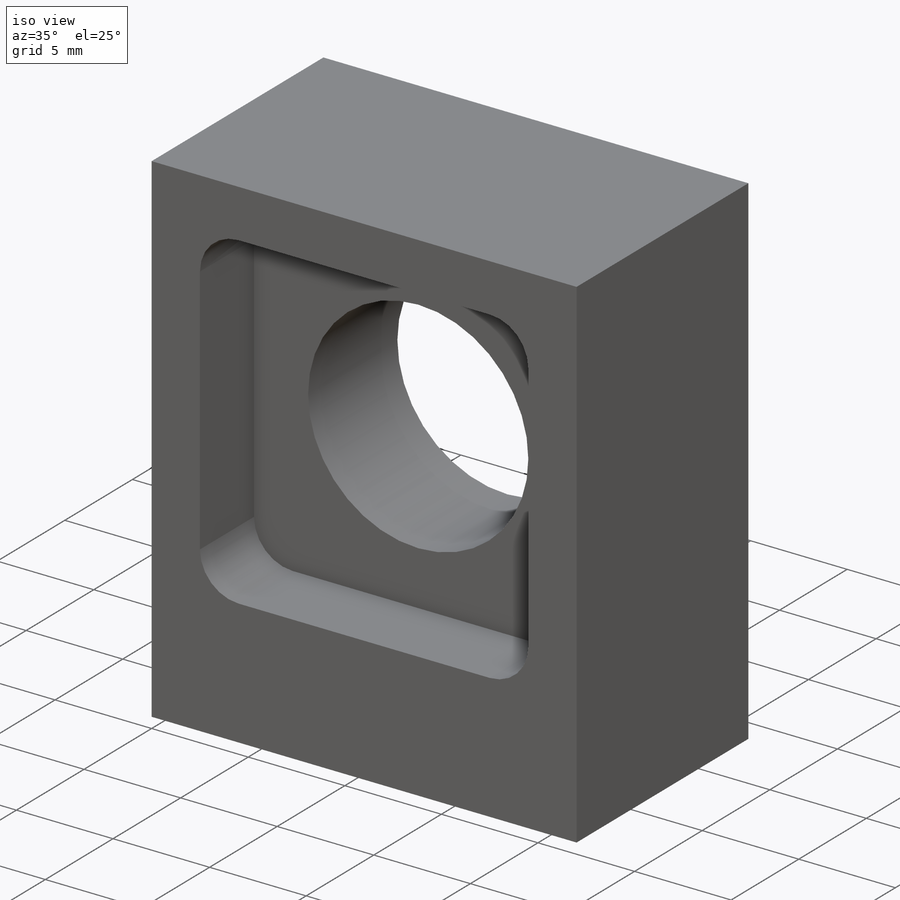
[diagram: iso view]
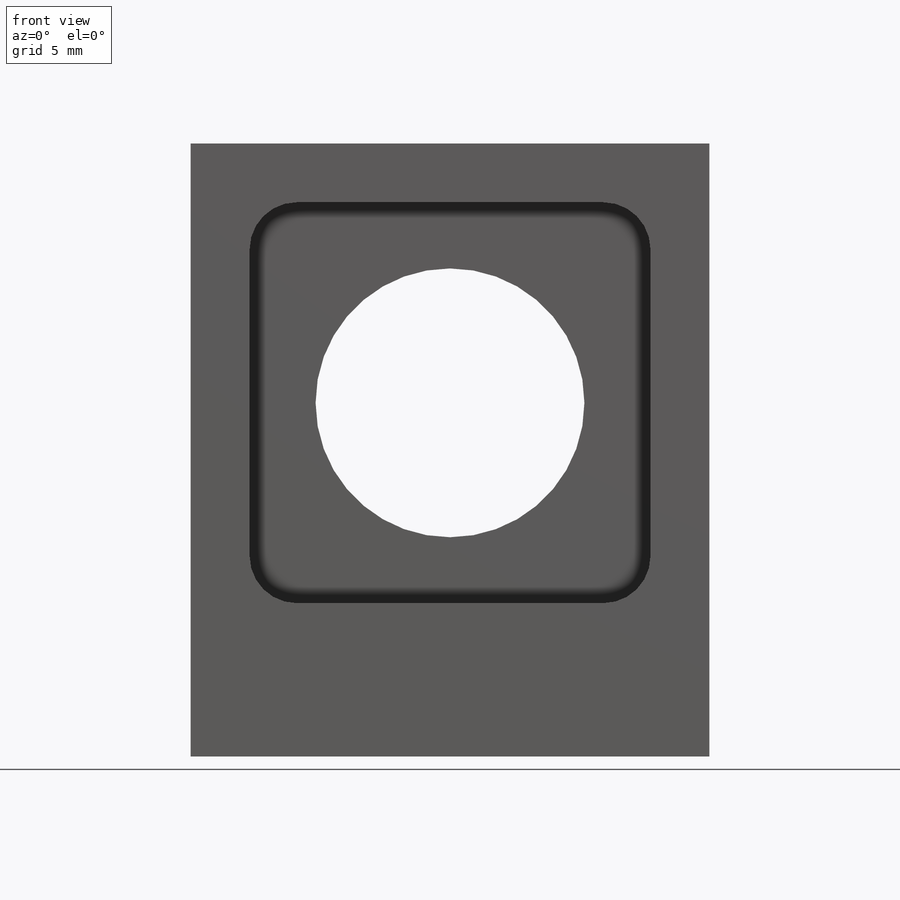
[diagram: front view]
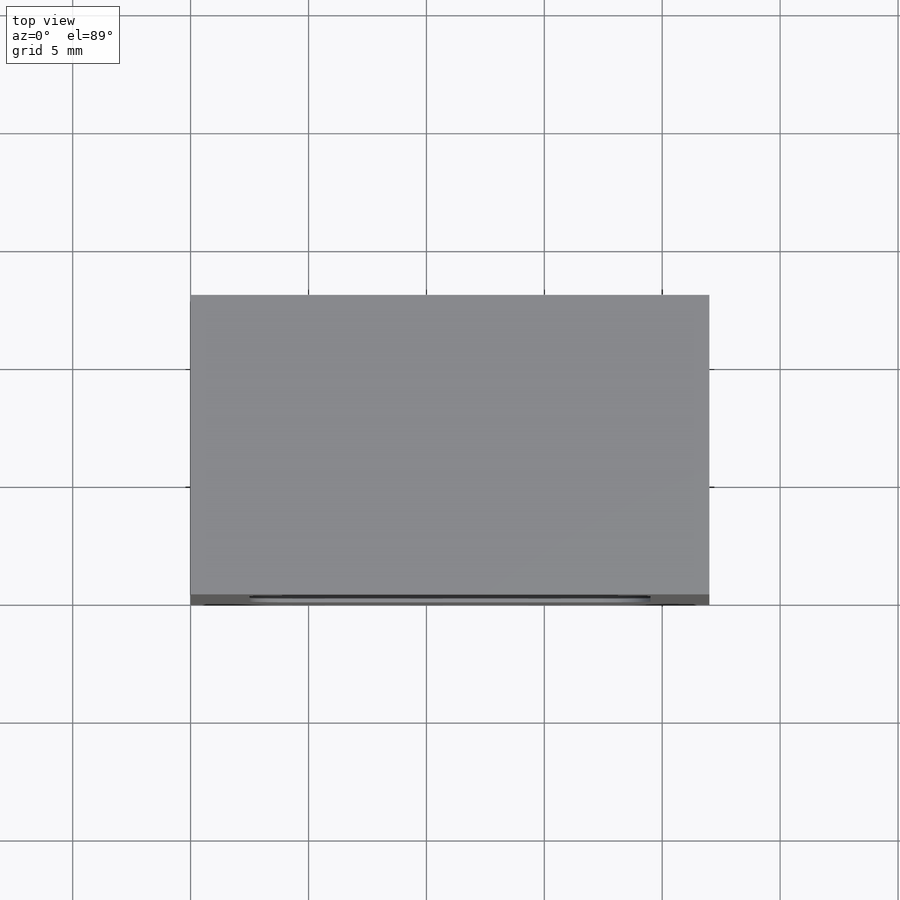
[diagram: top view]
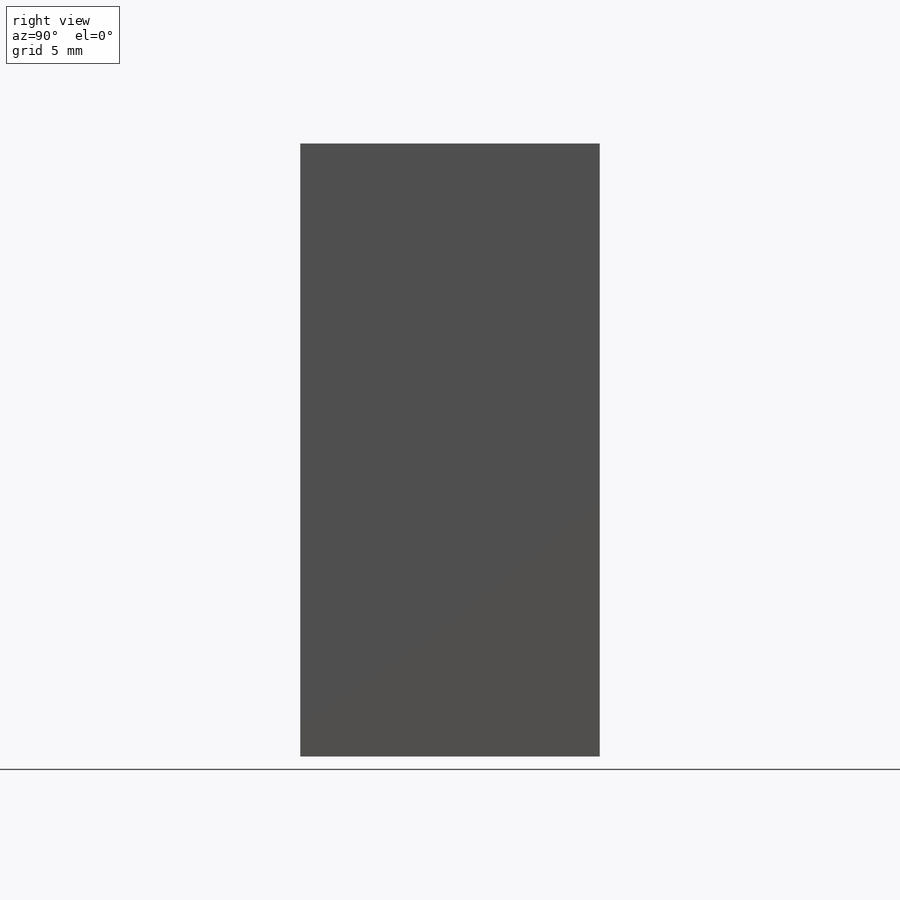
[diagram: right view]
SOLIDWORKS PART (.sldprt)
format: sldprt  version: not decoded by parser v0  size: 287,744 bytes
history: native  units: mm
features: sketch x8, cut_extrude x3, hole x2, thread x2, plane x2, mirror x2, material x1, extrude x1, fillet x1 (+11 scaffold rows collapsed)
feature tree (33):
  scaffold x11  (default folders/planes/origin — collapsed)
  material  "Material <not specified>"
  sketch  "Sketch1"  dims[D1=22.0mm D2=12.7mm]
  extrude  "Boss-Extrude1"  Depth=26mm
  hole  "M3x0.5 Tapped Hole1"  Diameter=2.5mm Depth=5mm
  sketch  "Sketch3"  dims[D1=4.0mm D2=3.0mm]
  sketch  "Sketch2"  dims[hole-wizard template sketch: 46 standard entries collapsed; hole parameters above]
  thread  "Hole Thread1"  Diameter=5mm  [1 undecoded]
  plane  "Plane1"
  plane  "Plane2"
  mirror  "Mirror1"
  mirror  "Mirror2"
  hole  "M3x0.5 Tapped Hole2"  Diameter=2.5mm Depth=5mm
  sketch  "Sketch6"
  sketch  "Sketch4"  dims[hole-wizard template sketch: 46 standard entries collapsed; hole parameters above]
  thread  "Hole Thread2"  Diameter=5mm  [1 undecoded]
  sketch  "Sketch7"  dims[D1=11.4mm D2=15.0mm]
  cut_extrude  "Cut-Extrude1"  [1 undecoded]
  sketch  "Sketch8"  dims[D1=2.5mm D2=2.5mm D3=17.0mm D4=17.0mm]
  cut_extrude  "Cut-Extrude2"  Depth=4mm
  fillet  "Fillet1"  Radius=2mm
  sketch  "Sketch9"  dims[D1=16.1mm]
  cut_extrude  "Cut-Extrude3"  Depth=2.1mm
decode coverage: 15 of 19 modeling features carry decoded parameters
note: ~ marks probable driven/reference dimensions
note: 3 parameter values undecoded
note: suppression state not decoded; provenance and decode notes live in map.json
